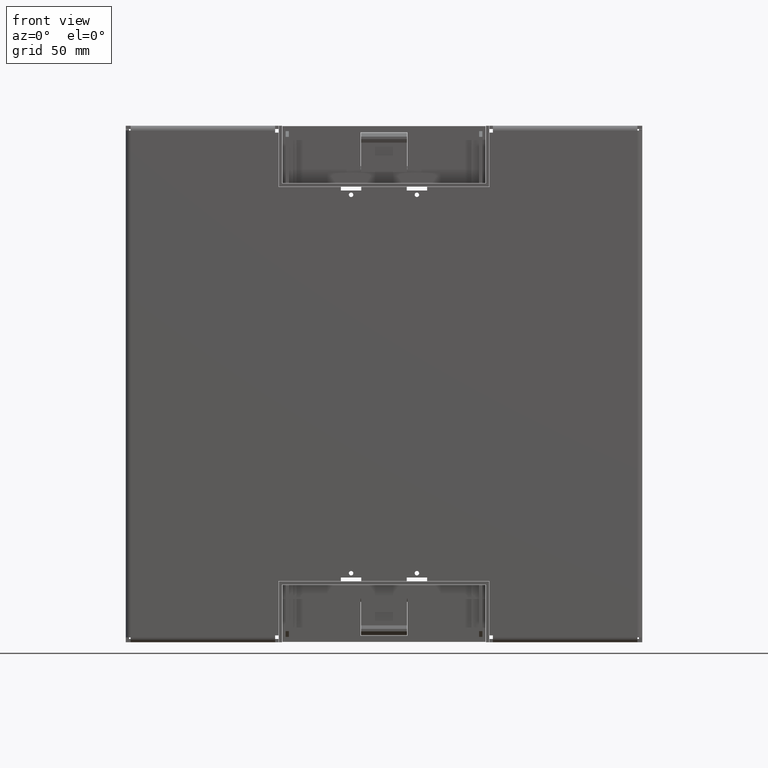
[diagram: clean part render]
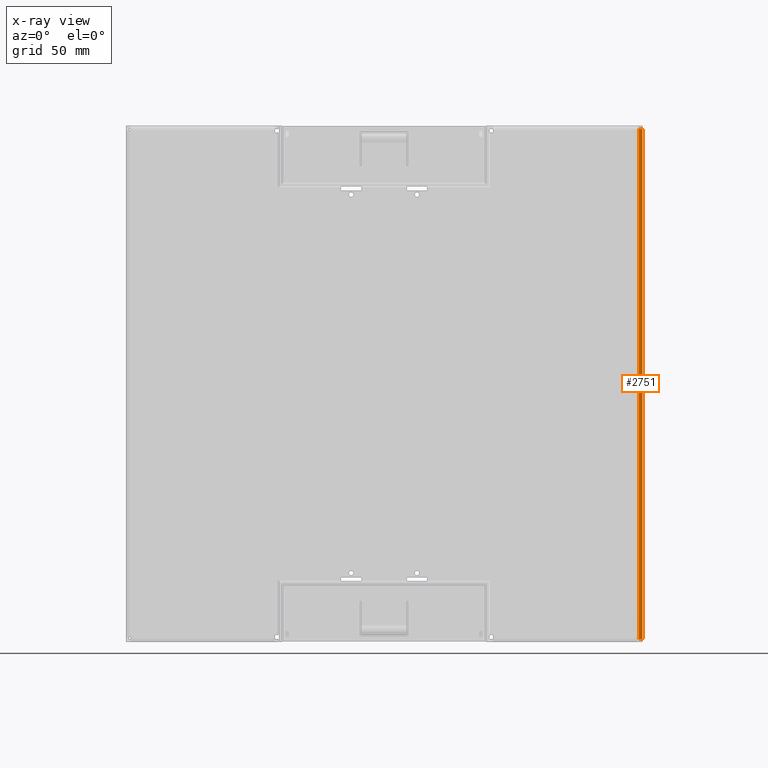
[diagram: x-ray — body ghosted, one internal face saturated and labeled with its STEP entity id]
A machine part, front view, then the same camera in x-ray: the body is ghosted and one INTERNAL B-rep face — a face not visible from any outside direction — is saturated and labeled: STEP entity #2751.
In plain terms, the highlighted planar face has unit normal (0, 1, 0).
Its self-contained STEP definition (entity closure, byte-faithful):
#976=DIRECTION('',(0.E0,0.E0,1.E0));
#977=VECTOR('',#976,3.099E2);
#978=CARTESIAN_POINT('',(-1.57E2,1.7E1,-1.5495E2));
#979=LINE('',#978,#977);
#988=DIRECTION('',(-1.E0,0.E0,0.E0));
#989=VECTOR('',#988,2.E0);
#990=CARTESIAN_POINT('',(-1.55E2,1.7E1,1.5495E2));
#991=LINE('',#990,#989);
#1000=DIRECTION('',(0.E0,0.E0,-1.E0));
#1001=VECTOR('',#1000,3.099E2);
#1002=CARTESIAN_POINT('',(-1.55E2,1.7E1,1.5495E2));
#1003=LINE('',#1002,#1001);
#1266=DIRECTION('',(-1.E0,0.E0,0.E0));
#1267=VECTOR('',#1266,2.E0);
#1268=CARTESIAN_POINT('',(-1.55E2,1.7E1,-1.5495E2));
#1269=LINE('',#1268,#1267);
#1696=CARTESIAN_POINT('',(-1.57E2,1.7E1,-1.5495E2));
#1697=CARTESIAN_POINT('',(-1.57E2,1.7E1,1.5495E2));
#1698=VERTEX_POINT('',#1696);
#1699=VERTEX_POINT('',#1697);
#1704=CARTESIAN_POINT('',(-1.55E2,1.7E1,1.5495E2));
#1705=CARTESIAN_POINT('',(-1.55E2,1.7E1,-1.5495E2));
#1706=VERTEX_POINT('',#1704);
#1707=VERTEX_POINT('',#1705);
#2737=CARTESIAN_POINT('',(-1.56E2,1.7E1,-7.7E1));
#2738=DIRECTION('',(0.E0,1.E0,0.E0));
#2739=DIRECTION('',(0.E0,0.E0,-1.E0));
#2740=AXIS2_PLACEMENT_3D('',#2737,#2738,#2739);
#2741=PLANE('',#2740);
#2743=ORIENTED_EDGE('',*,*,#2742,.F.);
#2745=ORIENTED_EDGE('',*,*,#2744,.T.);
#2746=ORIENTED_EDGE('',*,*,#2723,.F.);
#2748=ORIENTED_EDGE('',*,*,#2747,.F.);
#2749=EDGE_LOOP('',(#2743,#2745,#2746,#2748));
#2750=FACE_OUTER_BOUND('',#2749,.F.);
#2723=EDGE_CURVE('',#1698,#1699,#979,.T.);
#2742=EDGE_CURVE('',#1706,#1707,#1003,.T.);
#2744=EDGE_CURVE('',#1706,#1699,#991,.T.);
#2747=EDGE_CURVE('',#1707,#1698,#1269,.T.);
#2751=ADVANCED_FACE('',(#2750),#2741,.T.);